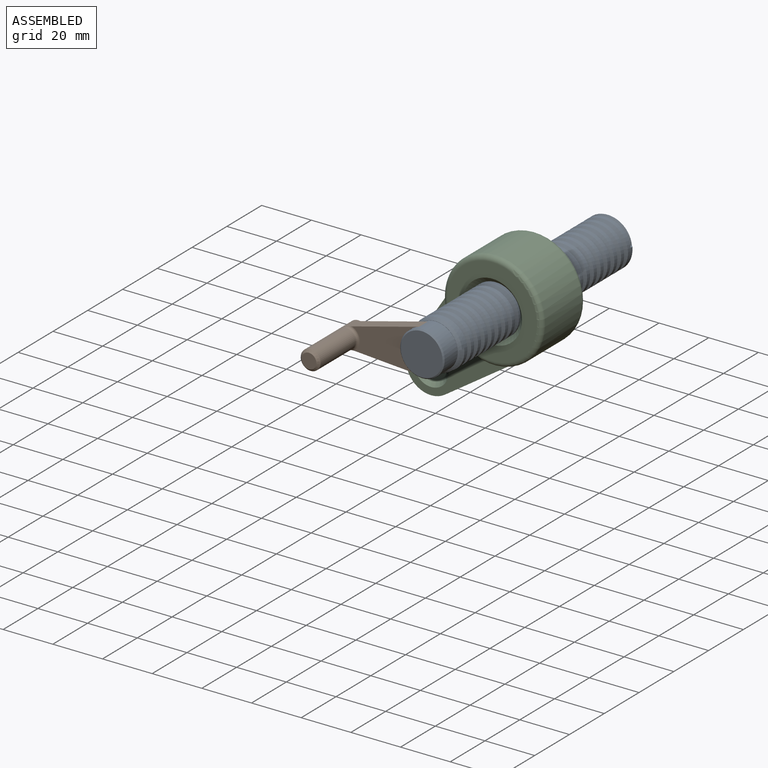
[diagram: assembled view]
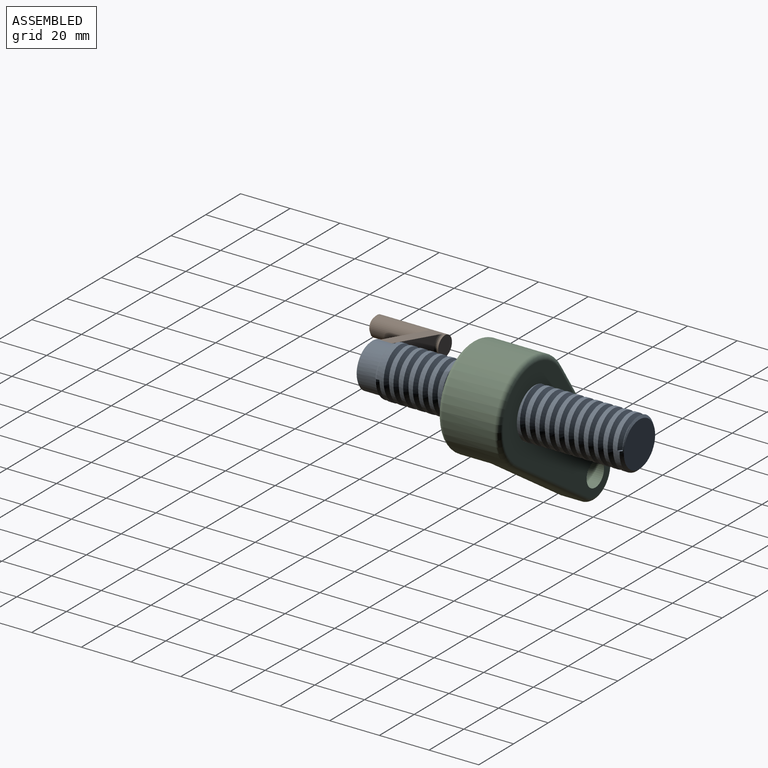
[diagram: assembled view, second angle]
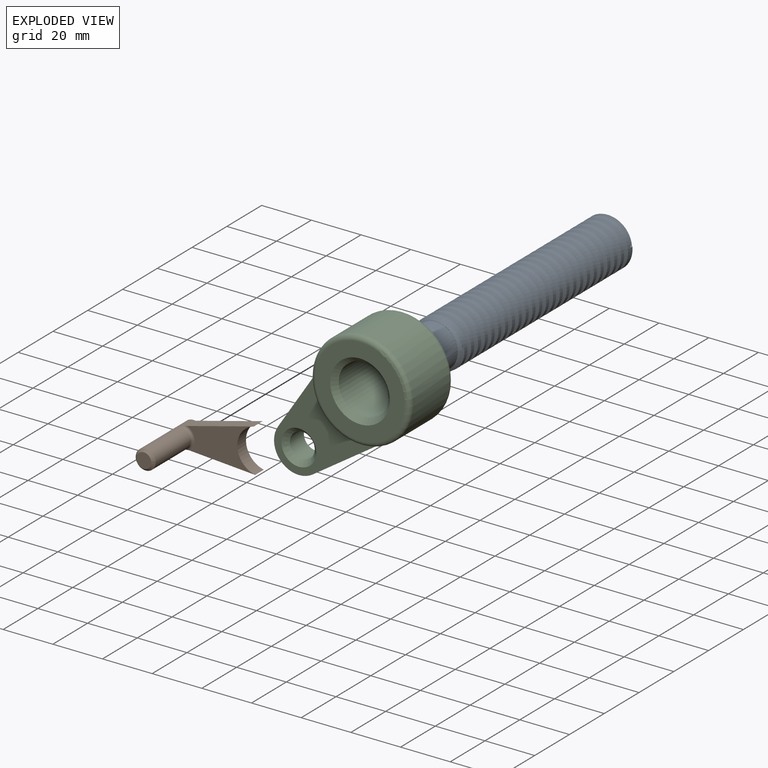
[diagram: exploded view]
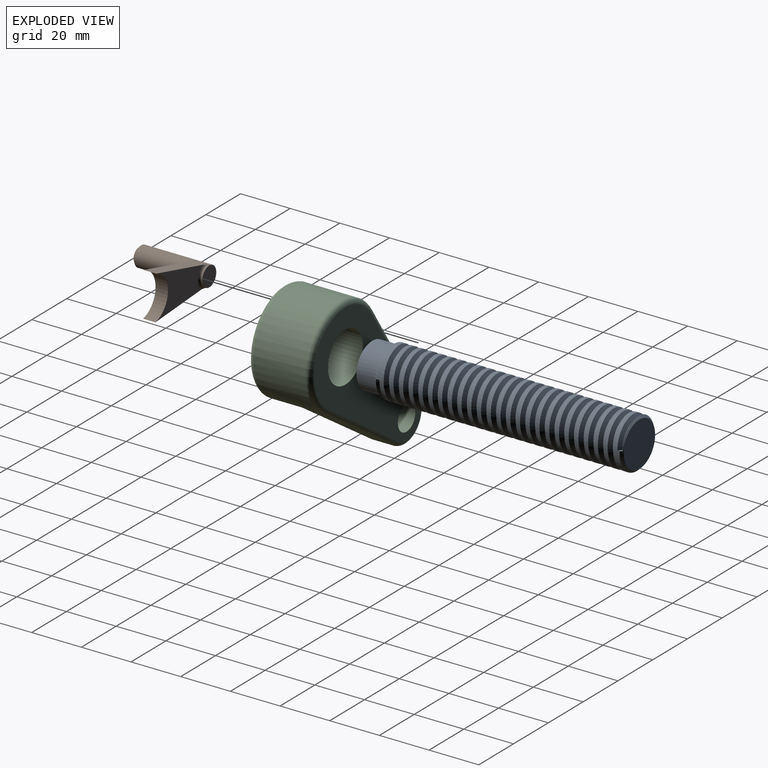
[diagram: exploded view, second angle]
ASSEMBLY  parts=3 mates=2
PART A: 12 faces, bbox 20.2x108.3x23.2 mm
  f0: cone r=9mm half-angle=45deg, axis (0,1,0), area 77.9mm2, adj f1,f2,f10,f11
  f1: cylinder r=10mm len=98mm, axis (0,1,0), area 3019.5mm2, adj f0,f4,f8,f9,f10,f11
  f2: plane 18x18mm, normal (0,-1,0), area 4.4mm2, adj f0,f5
  f3: plane 18x18mm, normal (0,1,0), area 254.5mm2, adj f4
  f4: cone r=10mm half-angle=45deg, axis (0,-1,0), area 74.4mm2, adj f1,f3,f8,f9
  f5: cylinder r=8.92mm len=17.85mm, axis (0,1,0), area 420.5mm2, adj f2,f7
  f6: plane 16.85x16.85mm, normal (0,-1,0), area 222.9mm2, adj f7
  f7: cone r=8.42mm half-angle=45deg, axis (0,1,0), area 38.5mm2, adj f5,f6
  f8: plane 1.71x1.67mm, normal (0,-0.06,-1), area 1.4mm2, adj f1,f4,f9,f11
  f9: bspline ~99.31x23.23mm, area 3041.9mm2, adj f1,f4,f8,f10,f11
  f10: plane 1.87x1.7mm, normal (0,0.06,1), area 1.6mm2, adj f0,f1,f9,f11
  f11: bspline ~98.97x23.23mm, area 2792.4mm2, adj f0,f1,f8,f9,f10
PART B: 11 faces, bbox 34x29.2x17.7 mm
  f0: plane 30.6x7.25mm, normal (0.16,0,-0.99), area 155.9mm2, adj f2,f3,f4,f5,f9,f10
  f1: plane 28.33x7.25mm, normal (0.16,0,0.99), area 143.4mm2, adj f2,f3,f4,f5,f9,f10
  f2: cylinder r=9mm len=17.49mm, axis (0,1,0), area 120.8mm2, adj f0,f1,f3,f4
  f3: plane 27.43x17.49mm, normal (0,-1,0), area 243.6mm2, adj f0,f1,f2,f10
  f4: plane 27.43x17.49mm, normal (0,1,0), area 243.6mm2, adj f0,f1,f2,f9
  f5: cylinder r=3.99mm len=27.4mm, axis (0,1,0), area 598.8mm2, adj f0,f1,f7,f8,f9,f10
  f6: plane 5.99x5.99mm, normal (0,-1,0), area 28.2mm2, adj f8
  f7: plane 7.99x7.99mm, normal (0,1,0), area 50.1mm2, adj f5
  f8: cone r=2.99mm half-angle=45deg, axis (0,1,0), area 31mm2, adj f5,f6
  f9: torus R=4.99mm, axis (0,-1,0), area 18mm2, adj f0,f1,f4,f5
  f10: torus R=4.99mm, axis (0,-1,0), area 18mm2, adj f0,f1,f3,f5
PART C: 16 faces, bbox 82.5x25x43.3 mm
  f0: plane 55.41x38.93mm, normal (0,-1,0), area 904.5mm2, adj f1,f2,f3,f4,f14
  f1: cylinder r=20mm len=40mm, axis (0,1,0), area 2210.4mm2, adj f0,f2,f4,f10,f13
  f2: plane 47.41x9.67mm, normal (-0.2,0,0.98), area 387.1mm2, adj f0,f1,f3,f12
  f3: cylinder r=10mm len=19.6mm, axis (0,1,0), area 219.1mm2, adj f0,f2,f4,f11
  f4: plane 47.41x9.67mm, normal (-0.2,0,-0.98), area 387.1mm2, adj f0,f1,f3,f9
  f5: cylinder r=10mm len=23mm, axis (0,1,0), area 1445.1mm2, adj f7,f15
  f6: cylinder r=5mm len=10mm, axis (0,1,0), area 251.3mm2, adj f7,f14
  f7: plane 76x36mm, normal (0,1,0), area 1542.4mm2, adj f5,f6,f9,f10,f11,f12
  f8: plane 36x36mm, normal (0,-1,0), area 565.5mm2, adj f13,f15
  f9: cylinder r=2mm len=47.84mm, axis (0.98,0,-0.2), area 152.1mm2, adj f4,f7,f10,f11
  f10: torus R=18mm, axis (0,-1,0), area 218.3mm2, adj f1,f7,f9,f12
  f11: torus R=8mm, axis (0,-1,0), area 79.8mm2, adj f3,f7,f9,f12
  f12: cylinder r=2mm len=47.84mm, axis (-0.98,0,-0.2), area 152.1mm2, adj f2,f7,f10,f11
  f13: torus R=18mm, axis (0,-1,0), area 380.4mm2, adj f1,f8
  f14: cone r=5mm half-angle=45deg, axis (0,-1,0), area 106.6mm2, adj f0,f6
  f15: cone r=10mm half-angle=45deg, axis (0,-1,0), area 195.5mm2, adj f5,f8
PLACE A rot(axis=(0,1,0),174.6deg) t=(97.45,28.89,4.6)mm
PLACE B rot(axis=(0,1,0),174.6deg) t=(97.45,29.64,4.6)mm
PLACE C rot(axis=(0,-1,0),45.3deg) t=(48.84,36.5,0)mm fixed
MATE cylindrical C.f5 <-> A.f0  axis (0,1,0) through (48.84,25,0)mm
MATE fastened B.f2 <-> A.f0  axis (0,1,0) through (48.84,-24.86,0)mm
